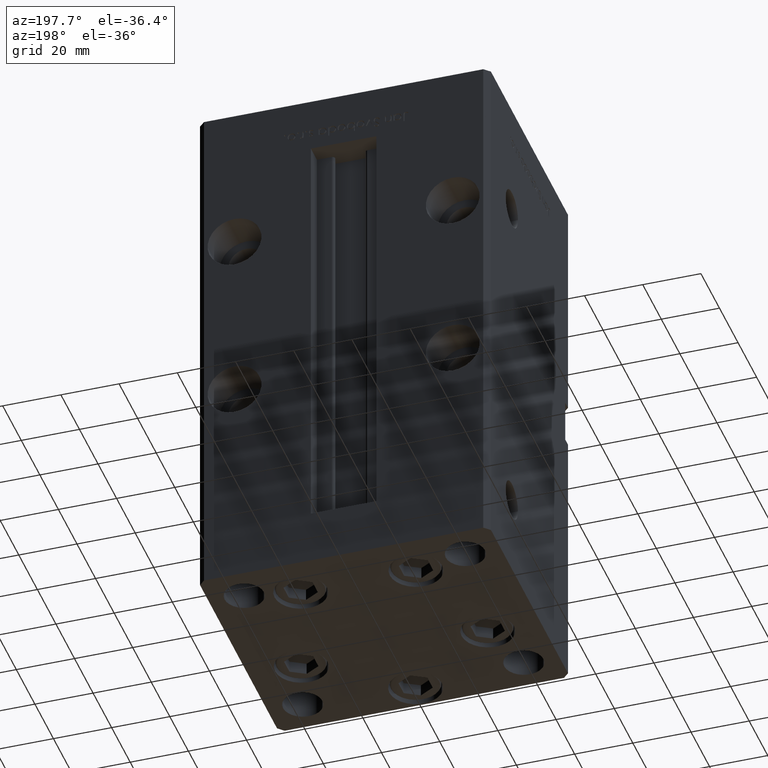
[diagram: clean part render]
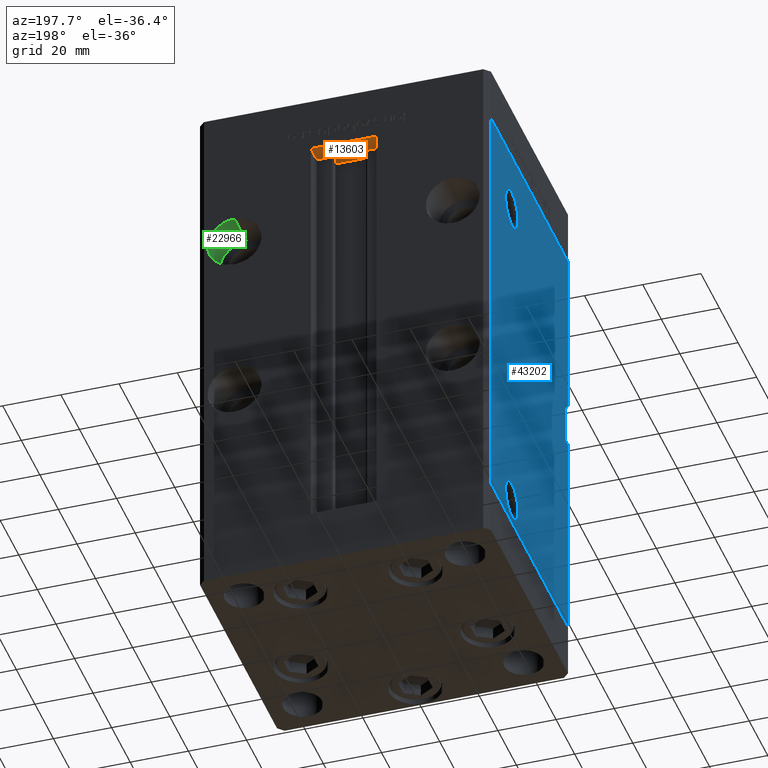
[diagram: same view with three faces highlighted in distinct colors, each labeled with its STEP entity id]
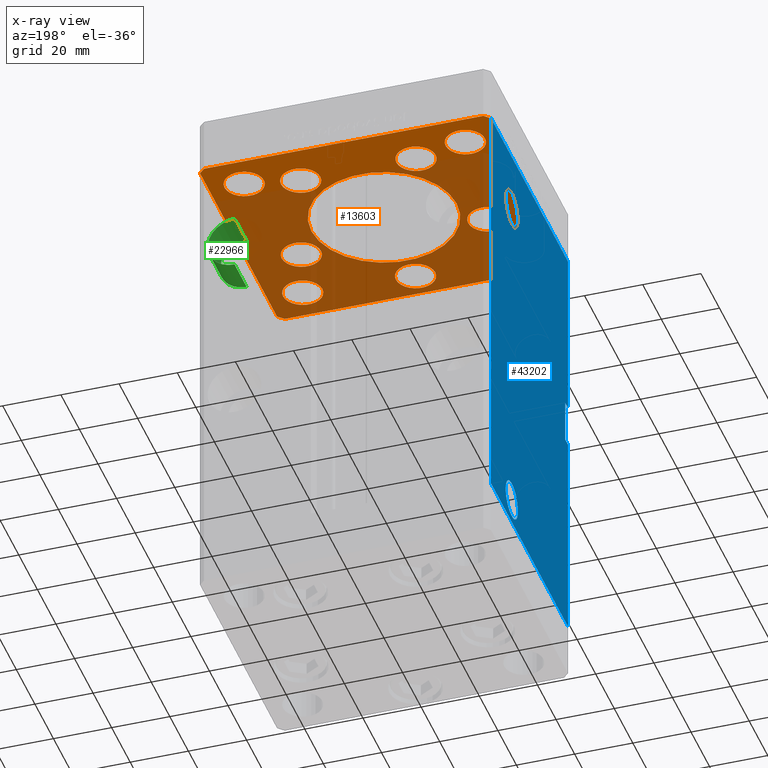
[diagram: x-ray of the same camera — body ghosted, the three highlighted faces saturated]
A machine part, auxiliary view with three faces highlighted in distinct colors.
The next image is the same camera in x-ray (body ghosted, the three faces saturated) — at least one of them is partly hidden behind the body in this view.
Their STEP definitions:

[orange] entity #13603 — the highlighted planar face has unit normal (0, 0, 1).
#55 = DIRECTION ( 'NONE',  ( 1.000000000000000000, 0.000000000000000000, 0.000000000000000000 ) ) ;
#145 = DIRECTION ( 'NONE',  ( 0.000000000000000000, 0.000000000000000000, 1.000000000000000000 ) ) ;
#252 = DIRECTION ( 'NONE',  ( 0.000000000000000000, 1.000000000000000000, 0.000000000000000000 ) ) ;
#418 = ORIENTED_EDGE ( 'NONE', *, *, #24562, .F. ) ;
#487 = ORIENTED_EDGE ( 'NONE', *, *, #46979, .T. ) ;
#545 = EDGE_CURVE ( 'NONE', #21549, #40466, #6667, .T. ) ;
#688 = VECTOR ( 'NONE', #32092, 1000.000000000000000 ) ;
#708 = DIRECTION ( 'NONE',  ( 0.000000000000000000, -0.000000000000000000, -1.000000000000000000 ) ) ;
#743 = CARTESIAN_POINT ( 'NONE',  ( -48.00000000000000711, -43.50000000000002842, -19.00000000000000000 ) ) ;
#828 = VECTOR ( 'NONE', #37924, 1000.000000000000000 ) ;
#923 = AXIS2_PLACEMENT_3D ( 'NONE', #33076, #21474, #49746 ) ;
#1153 = VERTEX_POINT ( 'NONE', #42337 ) ;
#1804 = DIRECTION ( 'NONE',  ( 1.000000000000000000, 1.156482317317871331E-15, 0.000000000000000000 ) ) ;
#1805 = ORIENTED_EDGE ( 'NONE', *, *, #36963, .F. ) ;
#2052 = DIRECTION ( 'NONE',  ( 0.000000000000000000, -0.000000000000000000, -1.000000000000000000 ) ) ;
#2056 = VERTEX_POINT ( 'NONE', #9770 ) ;
#2241 = ORIENTED_EDGE ( 'NONE', *, *, #12536, .F. ) ;
#2251 = EDGE_CURVE ( 'NONE', #40466, #2056, #15671, .T. ) ;
#2346 = CARTESIAN_POINT ( 'NONE',  ( 38.00000000000000711, -31.50000000000000711, -19.00000000000000000 ) ) ;
#2405 = AXIS2_PLACEMENT_3D ( 'NONE', #33517, #12285, #49414 ) ;
#2724 = DIRECTION ( 'NONE',  ( -0.000000000000000000, 0.000000000000000000, 1.000000000000000000 ) ) ;
#2906 = AXIS2_PLACEMENT_3D ( 'NONE', #14158, #2052, #13896 ) ;
#2921 = CARTESIAN_POINT ( 'NONE',  ( 50.00000000000000000, 41.50000000000000711, -19.00000000000000000 ) ) ;
#2995 = FACE_BOUND ( 'NONE', #42290, .T. ) ;
#3038 = CARTESIAN_POINT ( 'NONE',  ( 38.80550741379015989, -11.33333333333332860, -19.00000000000000000 ) ) ;
#3656 = DIRECTION ( 'NONE',  ( 1.000000000000000000, 0.000000000000000000, 0.000000000000000000 ) ) ;
#3662 = EDGE_CURVE ( 'NONE', #42393, #13026, #16055, .T. ) ;
#3750 = CARTESIAN_POINT ( 'NONE',  ( -38.00000000000000711, -31.50000000000000711, -19.00000000000000000 ) ) ;
#4226 = DIRECTION ( 'NONE',  ( 0.7071067811865474617, 0.7071067811865474617, 0.000000000000000000 ) ) ;
#4342 = EDGE_CURVE ( 'NONE', #30519, #51500, #33262, .T. ) ;
#4751 = DIRECTION ( 'NONE',  ( 0.000000000000000000, -0.000000000000000000, -1.000000000000000000 ) ) ;
#5532 = DIRECTION ( 'NONE',  ( 0.000000000000000000, -0.000000000000000000, -1.000000000000000000 ) ) ;
#6015 = AXIS2_PLACEMENT_3D ( 'NONE', #39590, #2724, #35554 ) ;
#6084 = EDGE_CURVE ( 'NONE', #21368, #23447, #33841, .T. ) ;
#6110 = DIRECTION ( 'NONE',  ( -0.000000000000000000, -0.000000000000000000, -1.000000000000000000 ) ) ;
#6114 = CARTESIAN_POINT ( 'NONE',  ( -31.25000000000000000, 31.50000000000000000, -19.00000000000000000 ) ) ;
#6140 = EDGE_LOOP ( 'NONE', ( #15444, #29737 ) ) ;
#6237 = CIRCLE ( 'NONE', #12289, 6.749999999999999112 ) ;
#6485 = FACE_BOUND ( 'NONE', #12703, .T. ) ;
#6667 = LINE ( 'NONE', #2921, #15241 ) ;
#6852 = EDGE_CURVE ( 'NONE', #43622, #49764, #18724, .T. ) ;
#7277 = FACE_OUTER_BOUND ( 'NONE', #26080, .T. ) ;
#7300 = DIRECTION ( 'NONE',  ( -0.000000000000000000, -0.000000000000000000, -1.000000000000000000 ) ) ;
#7324 = CARTESIAN_POINT ( 'NONE',  ( -38.00000000000000000, 31.50000000000000000, -19.00000000000000000 ) ) ;
#7328 = ORIENTED_EDGE ( 'NONE', *, *, #41647, .T. ) ;
#7512 = CARTESIAN_POINT ( 'NONE',  ( 25.00000000000000000, 0.000000000000000000, -19.00000000000000000 ) ) ;
#7591 = DIRECTION ( 'NONE',  ( 1.000000000000000000, 0.000000000000000000, 0.000000000000000000 ) ) ;
#8013 = CIRCLE ( 'NONE', #45000, 6.749999999999999112 ) ;
#8132 = CIRCLE ( 'NONE', #21000, 6.749999999999999112 ) ;
#8480 = CARTESIAN_POINT ( 'NONE',  ( -48.00000000000000000, 43.49999999999997158, -19.00000000000000000 ) ) ;
#8502 = VERTEX_POINT ( 'NONE', #6114 ) ;
#8650 = CARTESIAN_POINT ( 'NONE',  ( 0.000000000000000000, 0.000000000000000000, -19.00000000000000000 ) ) ;
#8686 = EDGE_CURVE ( 'NONE', #16312, #12153, #46302, .T. ) ;
#8777 = CIRCLE ( 'NONE', #38879, 6.749999999999999112 ) ;
#8909 = ORIENTED_EDGE ( 'NONE', *, *, #37742, .F. ) ;
#9088 = CARTESIAN_POINT ( 'NONE',  ( 31.25000000000000711, -31.50000000000000711, -19.00000000000000000 ) ) ;
#9173 = EDGE_CURVE ( 'NONE', #8502, #14466, #26535, .T. ) ;
#9663 = CIRCLE ( 'NONE', #20851, 6.749999999999999112 ) ;
#9770 = CARTESIAN_POINT ( 'NONE',  ( -48.00000000000000000, 43.49999999999997158, -19.00000000000000000 ) ) ;
#9789 = ORIENTED_EDGE ( 'NONE', *, *, #545, .F. ) ;
#10038 = ORIENTED_EDGE ( 'NONE', *, *, #3662, .F. ) ;
#10597 = ORIENTED_EDGE ( 'NONE', *, *, #49715, .T. ) ;
#10696 = CIRCLE ( 'NONE', #20156, 6.749999999999999112 ) ;
#11073 = DIRECTION ( 'NONE',  ( -1.000000000000000000, 0.000000000000000000, 0.000000000000000000 ) ) ;
#11261 = DIRECTION ( 'NONE',  ( 1.000000000000000000, 0.000000000000000000, 0.000000000000000000 ) ) ;
#11808 = VERTEX_POINT ( 'NONE', #43535 ) ;
#12153 = VERTEX_POINT ( 'NONE', #27322 ) ;
#12187 = AXIS2_PLACEMENT_3D ( 'NONE', #3750, #20159, #46786 ) ;
#12285 = DIRECTION ( 'NONE',  ( 0.000000000000000000, -0.000000000000000000, -1.000000000000000000 ) ) ;
#12289 = AXIS2_PLACEMENT_3D ( 'NONE', #16612, #4751, #21165 ) ;
#12436 = CARTESIAN_POINT ( 'NONE',  ( 44.75000000000000711, -31.50000000000000711, -19.00000000000000000 ) ) ;
#12536 = EDGE_CURVE ( 'NONE', #23479, #49799, #50033, .T. ) ;
#12539 = DIRECTION ( 'NONE',  ( -0.7071067811865536790, -0.7071067811865414665, 0.000000000000000000 ) ) ;
#12607 = CARTESIAN_POINT ( 'NONE',  ( 47.99999999999999289, 43.50000000000000000, -19.00000000000000000 ) ) ;
#12695 = CARTESIAN_POINT ( 'NONE',  ( 38.00000000000000000, 31.50000000000000000, -19.00000000000000000 ) ) ;
#12703 = EDGE_LOOP ( 'NONE', ( #52658, #41574 ) ) ;
#12952 = DIRECTION ( 'NONE',  ( 0.000000000000000000, -0.000000000000000000, -1.000000000000000000 ) ) ;
#13026 = VERTEX_POINT ( 'NONE', #15221 ) ;
#13143 = CARTESIAN_POINT ( 'NONE',  ( -50.00000000000000711, 41.49999999999999289, -19.00000000000000000 ) ) ;
#13300 = ORIENTED_EDGE ( 'NONE', *, *, #9173, .F. ) ;
#13351 = DIRECTION ( 'NONE',  ( 0.000000000000000000, -0.000000000000000000, -1.000000000000000000 ) ) ;
#13391 = VERTEX_POINT ( 'NONE', #36424 ) ;
#13603 = ADVANCED_FACE ( 'NONE', ( #44174, #35818, #23441, #6485, #31781, #43901, #47139, #35283, #7277, #51708, #2995 ), #23168, .F. ) ;
#13896 = DIRECTION ( 'NONE',  ( 1.000000000000000000, 0.000000000000000000, 0.000000000000000000 ) ) ;
#14158 = CARTESIAN_POINT ( 'NONE',  ( 0.000000000000000000, 0.000000000000000000, -19.00000000000000000 ) ) ;
#14212 = CARTESIAN_POINT ( 'NONE',  ( -48.00000000000000711, -43.50000000000002842, -19.00000000000000000 ) ) ;
#14403 = ORIENTED_EDGE ( 'NONE', *, *, #51338, .F. ) ;
#14457 = DIRECTION ( 'NONE',  ( -1.000000000000000000, 0.000000000000000000, 0.000000000000000000 ) ) ;
#14466 = VERTEX_POINT ( 'NONE', #29340 ) ;
#14631 = VECTOR ( 'NONE', #252, 1000.000000000000000 ) ;
#14682 = CARTESIAN_POINT ( 'NONE',  ( 44.75000000000000000, 31.50000000000000000, -19.00000000000000000 ) ) ;
#15221 = CARTESIAN_POINT ( 'NONE',  ( -25.00000000000000000, 3.061616997868383043E-15, -19.00000000000000000 ) ) ;
#15241 = VECTOR ( 'NONE', #47598, 999.9999999999998863 ) ;
#15444 = ORIENTED_EDGE ( 'NONE', *, *, #23277, .F. ) ;
#15671 = LINE ( 'NONE', #48240, #688 ) ;
#16055 = CIRCLE ( 'NONE', #27227, 25.00000000000000000 ) ;
#16312 = VERTEX_POINT ( 'NONE', #32086 ) ;
#16612 = CARTESIAN_POINT ( 'NONE',  ( 0.000000000000000000, -34.00000000000000000, -19.00000000000000000 ) ) ;
#16650 = EDGE_CURVE ( 'NONE', #23809, #11808, #44804, .T. ) ;
#17380 = CARTESIAN_POINT ( 'NONE',  ( 50.00000000000000000, -41.49999999999992895, -19.00000000000000000 ) ) ;
#17386 = CARTESIAN_POINT ( 'NONE',  ( 32.05550741379015989, -11.33333333333332860, -19.00000000000000000 ) ) ;
#17893 = VERTEX_POINT ( 'NONE', #37922 ) ;
#18348 = ORIENTED_EDGE ( 'NONE', *, *, #48132, .F. ) ;
#18716 = CARTESIAN_POINT ( 'NONE',  ( 31.25000000000000000, 31.50000000000000000, -19.00000000000000000 ) ) ;
#18724 = CIRCLE ( 'NONE', #2405, 6.749999999999999112 ) ;
#19155 = EDGE_LOOP ( 'NONE', ( #23675, #1805 ) ) ;
#19684 = EDGE_CURVE ( 'NONE', #49764, #43622, #22418, .T. ) ;
#19973 = CIRCLE ( 'NONE', #50053, 6.749999999999999112 ) ;
#20156 = AXIS2_PLACEMENT_3D ( 'NONE', #21122, #52909, #41054 ) ;
#20159 = DIRECTION ( 'NONE',  ( 0.000000000000000000, 0.000000000000000000, 1.000000000000000000 ) ) ;
#20851 = AXIS2_PLACEMENT_3D ( 'NONE', #50878, #43864, #26911 ) ;
#20887 = CIRCLE ( 'NONE', #40678, 6.749999999999999112 ) ;
#21000 = AXIS2_PLACEMENT_3D ( 'NONE', #39606, #7300, #11073 ) ;
#21122 = CARTESIAN_POINT ( 'NONE',  ( 19.82068048781374969, 27.62499999999998934, -19.00000000000000000 ) ) ;
#21150 = CARTESIAN_POINT ( 'NONE',  ( -38.00000000000000711, -31.50000000000000711, -19.00000000000000000 ) ) ;
#21165 = DIRECTION ( 'NONE',  ( 1.000000000000000000, 0.000000000000000000, 0.000000000000000000 ) ) ;
#21307 = VECTOR ( 'NONE', #1804, 1000.000000000000000 ) ;
#21368 = VERTEX_POINT ( 'NONE', #14212 ) ;
#21419 = DIRECTION ( 'NONE',  ( 1.000000000000000000, 0.000000000000000000, 0.000000000000000000 ) ) ;
#21474 = DIRECTION ( 'NONE',  ( 0.000000000000000000, -0.000000000000000000, -1.000000000000000000 ) ) ;
#21548 = ORIENTED_EDGE ( 'NONE', *, *, #41319, .F. ) ;
#21549 = VERTEX_POINT ( 'NONE', #32489 ) ;
#21963 = CARTESIAN_POINT ( 'NONE',  ( 0.000000000000000000, -34.00000000000000000, -19.00000000000000000 ) ) ;
#22418 = CIRCLE ( 'NONE', #48209, 6.749999999999999112 ) ;
#23069 = AXIS2_PLACEMENT_3D ( 'NONE', #21963, #708, #21419 ) ;
#23168 = PLANE ( 'NONE',  #6015 ) ;
#23277 = EDGE_CURVE ( 'NONE', #44752, #1153, #9663, .T. ) ;
#23441 = FACE_BOUND ( 'NONE', #45365, .T. ) ;
#23447 = VERTEX_POINT ( 'NONE', #33591 ) ;
#23479 = VERTEX_POINT ( 'NONE', #13143 ) ;
#23675 = ORIENTED_EDGE ( 'NONE', *, *, #4342, .F. ) ;
#23751 = LINE ( 'NONE', #32632, #28589 ) ;
#23809 = VERTEX_POINT ( 'NONE', #3038 ) ;
#24388 = CIRCLE ( 'NONE', #2906, 25.00000000000000000 ) ;
#24520 = EDGE_LOOP ( 'NONE', ( #13300, #49848 ) ) ;
#24562 = EDGE_CURVE ( 'NONE', #12153, #16312, #6237, .T. ) ;
#25437 = LINE ( 'NONE', #8480, #42453 ) ;
#26080 = EDGE_LOOP ( 'NONE', ( #18348, #2241, #14403, #26132, #9789, #8909, #48674, #33418 ) ) ;
#26132 = ORIENTED_EDGE ( 'NONE', *, *, #2251, .F. ) ;
#26535 = CIRCLE ( 'NONE', #35142, 6.749999999999999112 ) ;
#26682 = EDGE_CURVE ( 'NONE', #11808, #23809, #31215, .T. ) ;
#26753 = ORIENTED_EDGE ( 'NONE', *, *, #6852, .F. ) ;
#26911 = DIRECTION ( 'NONE',  ( 1.000000000000000000, 0.000000000000000000, 0.000000000000000000 ) ) ;
#27227 = AXIS2_PLACEMENT_3D ( 'NONE', #8650, #12952, #7591 ) ;
#27322 = CARTESIAN_POINT ( 'NONE',  ( -6.749999999999999112, -34.00000000000000000, -19.00000000000000000 ) ) ;
#27659 = EDGE_CURVE ( 'NONE', #13026, #42393, #24388, .T. ) ;
#28066 = DIRECTION ( 'NONE',  ( 0.7071067811865487940, -0.7071067811865463515, 0.000000000000000000 ) ) ;
#28512 = CIRCLE ( 'NONE', #31114, 6.749999999999999112 ) ;
#28589 = VECTOR ( 'NONE', #28066, 1000.000000000000000 ) ;
#28859 = DIRECTION ( 'NONE',  ( 0.000000000000000000, 0.000000000000000000, 1.000000000000000000 ) ) ;
#29340 = CARTESIAN_POINT ( 'NONE',  ( -44.75000000000000000, 31.50000000000000000, -19.00000000000000000 ) ) ;
#29737 = ORIENTED_EDGE ( 'NONE', *, *, #52448, .F. ) ;
#29770 = DIRECTION ( 'NONE',  ( 1.000000000000000000, 0.000000000000000000, 0.000000000000000000 ) ) ;
#30034 = CARTESIAN_POINT ( 'NONE',  ( 32.05550741379015989, -11.33333333333332860, -19.00000000000000000 ) ) ;
#30519 = VERTEX_POINT ( 'NONE', #42717 ) ;
#31040 = CARTESIAN_POINT ( 'NONE',  ( -19.82068048781374969, 27.62499999999998934, -19.00000000000000000 ) ) ;
#31114 = AXIS2_PLACEMENT_3D ( 'NONE', #2346, #6110, #14457 ) ;
#31215 = CIRCLE ( 'NONE', #41558, 6.749999999999999112 ) ;
#31537 = AXIS2_PLACEMENT_3D ( 'NONE', #31040, #40450, #51770 ) ;
#31727 = ORIENTED_EDGE ( 'NONE', *, *, #8686, .F. ) ;
#31781 = FACE_BOUND ( 'NONE', #6140, .T. ) ;
#32086 = CARTESIAN_POINT ( 'NONE',  ( 6.749999999999999112, -34.00000000000000000, -19.00000000000000000 ) ) ;
#32092 = DIRECTION ( 'NONE',  ( -1.000000000000000000, -2.891205793294678326E-16, 0.000000000000000000 ) ) ;
#32489 = CARTESIAN_POINT ( 'NONE',  ( 50.00000000000000000, 41.50000000000000711, -19.00000000000000000 ) ) ;
#32632 = CARTESIAN_POINT ( 'NONE',  ( -50.00000000000000000, -41.50000000000004263, -19.00000000000000000 ) ) ;
#33076 = CARTESIAN_POINT ( 'NONE',  ( -19.82068048781374969, 27.62499999999998934, -19.00000000000000000 ) ) ;
#33262 = CIRCLE ( 'NONE', #31537, 6.749999999999999112 ) ;
#33418 = ORIENTED_EDGE ( 'NONE', *, *, #6084, .F. ) ;
#33517 = CARTESIAN_POINT ( 'NONE',  ( -32.05550741379015989, -11.33333333333332860, -19.00000000000000000 ) ) ;
#33528 = DIRECTION ( 'NONE',  ( 0.000000000000000000, 0.000000000000000000, 1.000000000000000000 ) ) ;
#33591 = CARTESIAN_POINT ( 'NONE',  ( 48.00000000000000711, -43.49999999999992184, -19.00000000000000000 ) ) ;
#33841 = LINE ( 'NONE', #743, #21307 ) ;
#34307 = CARTESIAN_POINT ( 'NONE',  ( -26.57068048781375325, 27.62499999999998934, -19.00000000000000000 ) ) ;
#35071 = VERTEX_POINT ( 'NONE', #18716 ) ;
#35142 = AXIS2_PLACEMENT_3D ( 'NONE', #7324, #35596, #48516 ) ;
#35283 = FACE_BOUND ( 'NONE', #44573, .T. ) ;
#35554 = DIRECTION ( 'NONE',  ( 1.000000000000000000, 0.000000000000000000, 0.000000000000000000 ) ) ;
#35596 = DIRECTION ( 'NONE',  ( -0.000000000000000000, -0.000000000000000000, -1.000000000000000000 ) ) ;
#35818 = FACE_BOUND ( 'NONE', #35910, .T. ) ;
#35910 = EDGE_LOOP ( 'NONE', ( #50502, #26753 ) ) ;
#36424 = CARTESIAN_POINT ( 'NONE',  ( -44.75000000000000711, -31.50000000000000711, -19.00000000000000000 ) ) ;
#36454 = EDGE_LOOP ( 'NONE', ( #10038, #40407 ) ) ;
#36679 = ORIENTED_EDGE ( 'NONE', *, *, #51918, .F. ) ;
#36963 = EDGE_CURVE ( 'NONE', #51500, #30519, #43839, .T. ) ;
#37742 = EDGE_CURVE ( 'NONE', #46957, #21549, #52476, .T. ) ;
#37922 = CARTESIAN_POINT ( 'NONE',  ( -31.25000000000000711, -31.50000000000000711, -19.00000000000000000 ) ) ;
#37924 = DIRECTION ( 'NONE',  ( 8.360113137237620037E-17, -1.000000000000000000, 0.000000000000000000 ) ) ;
#38603 = CARTESIAN_POINT ( 'NONE',  ( -25.30550741379015989, -11.33333333333332860, -19.00000000000000000 ) ) ;
#38879 = AXIS2_PLACEMENT_3D ( 'NONE', #21150, #33528, #42140 ) ;
#39590 = CARTESIAN_POINT ( 'NONE',  ( 0.000000000000000000, 0.000000000000000000, -19.00000000000000000 ) ) ;
#39606 = CARTESIAN_POINT ( 'NONE',  ( 38.00000000000000711, -31.50000000000000711, -19.00000000000000000 ) ) ;
#40407 = ORIENTED_EDGE ( 'NONE', *, *, #27659, .F. ) ;
#40450 = DIRECTION ( 'NONE',  ( 0.000000000000000000, -0.000000000000000000, -1.000000000000000000 ) ) ;
#40466 = VERTEX_POINT ( 'NONE', #12607 ) ;
#40678 = AXIS2_PLACEMENT_3D ( 'NONE', #51902, #44093, #52962 ) ;
#41054 = DIRECTION ( 'NONE',  ( 1.000000000000000000, 0.000000000000000000, 0.000000000000000000 ) ) ;
#41103 = LINE ( 'NONE', #50239, #47526 ) ;
#41155 = CARTESIAN_POINT ( 'NONE',  ( 50.00000000000000000, -41.49999999999992895, -19.00000000000000000 ) ) ;
#41319 = EDGE_CURVE ( 'NONE', #47519, #44754, #28512, .T. ) ;
#41558 = AXIS2_PLACEMENT_3D ( 'NONE', #17386, #13351, #29770 ) ;
#41574 = ORIENTED_EDGE ( 'NONE', *, *, #26682, .F. ) ;
#41647 = EDGE_CURVE ( 'NONE', #17893, #13391, #52605, .T. ) ;
#42140 = DIRECTION ( 'NONE',  ( 1.000000000000000000, 0.000000000000000000, 0.000000000000000000 ) ) ;
#42224 = CARTESIAN_POINT ( 'NONE',  ( -50.00000000000000711, 41.49999999999999289, -19.00000000000000000 ) ) ;
#42290 = EDGE_LOOP ( 'NONE', ( #21548, #36679 ) ) ;
#42337 = CARTESIAN_POINT ( 'NONE',  ( 13.07068048781375147, 27.62499999999998934, -19.00000000000000000 ) ) ;
#42393 = VERTEX_POINT ( 'NONE', #7512 ) ;
#42436 = CARTESIAN_POINT ( 'NONE',  ( -38.80550741379015989, -11.33333333333332860, -19.00000000000000000 ) ) ;
#42453 = VECTOR ( 'NONE', #12539, 1000.000000000000000 ) ;
#42645 = CARTESIAN_POINT ( 'NONE',  ( -50.00000000000000000, -41.50000000000004263, -19.00000000000000000 ) ) ;
#42717 = CARTESIAN_POINT ( 'NONE',  ( -13.07068048781375325, 27.62499999999998934, -19.00000000000000000 ) ) ;
#43263 = EDGE_CURVE ( 'NONE', #35071, #43765, #19973, .T. ) ;
#43466 = EDGE_CURVE ( 'NONE', #23447, #46957, #41103, .T. ) ;
#43535 = CARTESIAN_POINT ( 'NONE',  ( 25.30550741379015989, -11.33333333333332860, -19.00000000000000000 ) ) ;
#43622 = VERTEX_POINT ( 'NONE', #42436 ) ;
#43765 = VERTEX_POINT ( 'NONE', #14682 ) ;
#43839 = CIRCLE ( 'NONE', #923, 6.749999999999999112 ) ;
#43864 = DIRECTION ( 'NONE',  ( 0.000000000000000000, -0.000000000000000000, -1.000000000000000000 ) ) ;
#43901 = FACE_BOUND ( 'NONE', #19155, .T. ) ;
#44093 = DIRECTION ( 'NONE',  ( -0.000000000000000000, -0.000000000000000000, -1.000000000000000000 ) ) ;
#44174 = FACE_BOUND ( 'NONE', #36454, .T. ) ;
#44573 = EDGE_LOOP ( 'NONE', ( #7328, #487 ) ) ;
#44752 = VERTEX_POINT ( 'NONE', #50540 ) ;
#44754 = VERTEX_POINT ( 'NONE', #9088 ) ;
#44804 = CIRCLE ( 'NONE', #51663, 6.749999999999999112 ) ;
#45000 = AXIS2_PLACEMENT_3D ( 'NONE', #52910, #145, #3656 ) ;
#45365 = EDGE_LOOP ( 'NONE', ( #31727, #418 ) ) ;
#45548 = EDGE_LOOP ( 'NONE', ( #10597, #50711 ) ) ;
#46302 = CIRCLE ( 'NONE', #23069, 6.749999999999999112 ) ;
#46786 = DIRECTION ( 'NONE',  ( 1.000000000000000000, 0.000000000000000000, 0.000000000000000000 ) ) ;
#46957 = VERTEX_POINT ( 'NONE', #17380 ) ;
#46979 = EDGE_CURVE ( 'NONE', #13391, #17893, #8777, .T. ) ;
#47139 = FACE_BOUND ( 'NONE', #45548, .T. ) ;
#47519 = VERTEX_POINT ( 'NONE', #12436 ) ;
#47526 = VECTOR ( 'NONE', #4226, 1000.000000000000114 ) ;
#47598 = DIRECTION ( 'NONE',  ( -0.7071067811865512365, 0.7071067811865439090, 0.000000000000000000 ) ) ;
#48132 = EDGE_CURVE ( 'NONE', #49799, #21368, #23751, .T. ) ;
#48135 = CARTESIAN_POINT ( 'NONE',  ( -32.05550741379015989, -11.33333333333332860, -19.00000000000000000 ) ) ;
#48209 = AXIS2_PLACEMENT_3D ( 'NONE', #48135, #52180, #11261 ) ;
#48240 = CARTESIAN_POINT ( 'NONE',  ( 47.99999999999999289, 43.50000000000000000, -19.00000000000000000 ) ) ;
#48516 = DIRECTION ( 'NONE',  ( -1.000000000000000000, 0.000000000000000000, 0.000000000000000000 ) ) ;
#48674 = ORIENTED_EDGE ( 'NONE', *, *, #43466, .F. ) ;
#48739 = EDGE_CURVE ( 'NONE', #14466, #8502, #20887, .T. ) ;
#49414 = DIRECTION ( 'NONE',  ( 1.000000000000000000, 0.000000000000000000, 0.000000000000000000 ) ) ;
#49715 = EDGE_CURVE ( 'NONE', #43765, #35071, #8013, .T. ) ;
#49746 = DIRECTION ( 'NONE',  ( 1.000000000000000000, 0.000000000000000000, 0.000000000000000000 ) ) ;
#49764 = VERTEX_POINT ( 'NONE', #38603 ) ;
#49799 = VERTEX_POINT ( 'NONE', #42645 ) ;
#49848 = ORIENTED_EDGE ( 'NONE', *, *, #48739, .F. ) ;
#50033 = LINE ( 'NONE', #42224, #828 ) ;
#50053 = AXIS2_PLACEMENT_3D ( 'NONE', #12695, #28859, #55 ) ;
#50239 = CARTESIAN_POINT ( 'NONE',  ( 48.00000000000000711, -43.49999999999992184, -19.00000000000000000 ) ) ;
#50502 = ORIENTED_EDGE ( 'NONE', *, *, #19684, .F. ) ;
#50540 = CARTESIAN_POINT ( 'NONE',  ( 26.57068048781374969, 27.62499999999998934, -19.00000000000000000 ) ) ;
#50711 = ORIENTED_EDGE ( 'NONE', *, *, #43263, .T. ) ;
#50749 = DIRECTION ( 'NONE',  ( 1.000000000000000000, 0.000000000000000000, 0.000000000000000000 ) ) ;
#50878 = CARTESIAN_POINT ( 'NONE',  ( 19.82068048781374969, 27.62499999999998934, -19.00000000000000000 ) ) ;
#51338 = EDGE_CURVE ( 'NONE', #2056, #23479, #25437, .T. ) ;
#51500 = VERTEX_POINT ( 'NONE', #34307 ) ;
#51663 = AXIS2_PLACEMENT_3D ( 'NONE', #30034, #5532, #50749 ) ;
#51708 = FACE_BOUND ( 'NONE', #24520, .T. ) ;
#51770 = DIRECTION ( 'NONE',  ( 1.000000000000000000, 0.000000000000000000, 0.000000000000000000 ) ) ;
#51902 = CARTESIAN_POINT ( 'NONE',  ( -38.00000000000000000, 31.50000000000000000, -19.00000000000000000 ) ) ;
#51918 = EDGE_CURVE ( 'NONE', #44754, #47519, #8132, .T. ) ;
#52180 = DIRECTION ( 'NONE',  ( 0.000000000000000000, -0.000000000000000000, -1.000000000000000000 ) ) ;
#52448 = EDGE_CURVE ( 'NONE', #1153, #44752, #10696, .T. ) ;
#52476 = LINE ( 'NONE', #41155, #14631 ) ;
#52605 = CIRCLE ( 'NONE', #12187, 6.749999999999999112 ) ;
#52658 = ORIENTED_EDGE ( 'NONE', *, *, #16650, .F. ) ;
#52909 = DIRECTION ( 'NONE',  ( 0.000000000000000000, -0.000000000000000000, -1.000000000000000000 ) ) ;
#52910 = CARTESIAN_POINT ( 'NONE',  ( 38.00000000000000000, 31.50000000000000000, -19.00000000000000000 ) ) ;
#52962 = DIRECTION ( 'NONE',  ( -1.000000000000000000, 0.000000000000000000, 0.000000000000000000 ) ) ;

[blue] entity #43202 — the highlighted planar face has unit normal (1, 0, 0).
#115 = LINE ( 'NONE', #13010, #7638 ) ;
#285 = DIRECTION ( 'NONE',  ( -0.000000000000000000, -1.000000000000000000, -0.000000000000000000 ) ) ;
#1165 = VERTEX_POINT ( 'NONE', #36386 ) ;
#1618 = DIRECTION ( 'NONE',  ( 0.000000000000000000, -1.000000000000000000, 0.000000000000000000 ) ) ;
#1870 = VECTOR ( 'NONE', #37722, 1000.000000000000000 ) ;
#3765 = DIRECTION ( 'NONE',  ( 3.344045254895050973E-16, -1.000000000000000000, 0.000000000000000000 ) ) ;
#4216 = CARTESIAN_POINT ( 'NONE',  ( -50.00000000000001421, 41.49999999999999289, 0.000000000000000000 ) ) ;
#4354 = FACE_BOUND ( 'NONE', #11310, .T. ) ;
#4524 = CARTESIAN_POINT ( 'NONE',  ( -50.00000000000000711, 19.00000000000000000, 127.5000000000000000 ) ) ;
#4665 = LINE ( 'NONE', #26178, #7037 ) ;
#6006 = EDGE_LOOP ( 'NONE', ( #51564, #36506 ) ) ;
#6216 = AXIS2_PLACEMENT_3D ( 'NONE', #40969, #8381, #12443 ) ;
#6551 = EDGE_CURVE ( 'NONE', #24413, #27914, #41943, .T. ) ;
#7037 = VECTOR ( 'NONE', #21077, 1000.000000000000000 ) ;
#7369 = CARTESIAN_POINT ( 'NONE',  ( -49.99999999999998579, -38.50000000000000000, 89.00000000000000000 ) ) ;
#7638 = VECTOR ( 'NONE', #41023, 1000.000000000000000 ) ;
#8381 = DIRECTION ( 'NONE',  ( 1.000000000000000000, 3.344045254895050480E-16, -0.000000000000000000 ) ) ;
#10109 = CARTESIAN_POINT ( 'NONE',  ( -49.99999999999998579, -38.50000000000000000, 89.00000000000000000 ) ) ;
#10372 = LINE ( 'NONE', #10109, #42449 ) ;
#10521 = DIRECTION ( 'NONE',  ( 0.000000000000000000, -1.000000000000000000, 0.000000000000000000 ) ) ;
#11146 = ORIENTED_EDGE ( 'NONE', *, *, #27655, .F. ) ;
#11310 = EDGE_LOOP ( 'NONE', ( #43282, #32800 ) ) ;
#11749 = CARTESIAN_POINT ( 'NONE',  ( -49.99999999999998579, -41.49999999999999289, 0.000000000000000000 ) ) ;
#11998 = VERTEX_POINT ( 'NONE', #4216 ) ;
#12104 = CARTESIAN_POINT ( 'NONE',  ( -50.00000000000001421, 41.49999999999999289, 148.5000000000000000 ) ) ;
#12443 = DIRECTION ( 'NONE',  ( -3.344045254895050480E-16, 1.000000000000000000, 0.000000000000000000 ) ) ;
#12713 = AXIS2_PLACEMENT_3D ( 'NONE', #4524, #29281, #21199 ) ;
#13010 = CARTESIAN_POINT ( 'NONE',  ( -49.99999999999998579, -38.50000000000000000, 74.00000000000000000 ) ) ;
#13076 = VECTOR ( 'NONE', #3765, 1000.000000000000000 ) ;
#13867 = CIRCLE ( 'NONE', #43961, 6.580000000000002736 ) ;
#14124 = VECTOR ( 'NONE', #285, 1000.000000000000000 ) ;
#14183 = VERTEX_POINT ( 'NONE', #25617 ) ;
#15047 = VERTEX_POINT ( 'NONE', #11749 ) ;
#16782 = CARTESIAN_POINT ( 'NONE',  ( -50.00000000000001421, 41.49999999999999289, 148.5000000000000000 ) ) ;
#17521 = EDGE_LOOP ( 'NONE', ( #39668, #43318, #11146, #26622, #25292, #18284, #46272, #48503 ) ) ;
#17605 = LINE ( 'NONE', #25411, #30266 ) ;
#18284 = ORIENTED_EDGE ( 'NONE', *, *, #24116, .F. ) ;
#18406 = CARTESIAN_POINT ( 'NONE',  ( -49.99999999999998579, -38.50000000000000000, 74.00000000000000000 ) ) ;
#21077 = DIRECTION ( 'NONE',  ( -0.000000000000000000, -0.000000000000000000, -1.000000000000000000 ) ) ;
#21199 = DIRECTION ( 'NONE',  ( 0.000000000000000000, -1.000000000000000000, 0.000000000000000000 ) ) ;
#21372 = DIRECTION ( 'NONE',  ( 3.344045254895050973E-16, -1.000000000000000000, 0.000000000000000000 ) ) ;
#21975 = DIRECTION ( 'NONE',  ( 0.000000000000000000, 0.000000000000000000, -1.000000000000000000 ) ) ;
#22011 = EDGE_CURVE ( 'NONE', #14183, #15047, #17605, .T. ) ;
#22289 = EDGE_CURVE ( 'NONE', #48860, #1165, #38986, .T. ) ;
#22799 = EDGE_CURVE ( 'NONE', #44530, #11998, #4665, .T. ) ;
#23102 = DIRECTION ( 'NONE',  ( -1.000000000000000000, -2.275047181608927644E-16, 0.000000000000000000 ) ) ;
#24020 = FACE_OUTER_BOUND ( 'NONE', #17521, .T. ) ;
#24116 = EDGE_CURVE ( 'NONE', #44530, #48860, #32298, .T. ) ;
#24356 = AXIS2_PLACEMENT_3D ( 'NONE', #32254, #23102, #39527 ) ;
#24413 = VERTEX_POINT ( 'NONE', #29249 ) ;
#25292 = ORIENTED_EDGE ( 'NONE', *, *, #22289, .F. ) ;
#25411 = CARTESIAN_POINT ( 'NONE',  ( -49.99999999999998579, -41.49999999999999289, 148.5000000000000000 ) ) ;
#25617 = CARTESIAN_POINT ( 'NONE',  ( -49.99999999999998579, -41.49999999999999289, 74.00000000000000000 ) ) ;
#26178 = CARTESIAN_POINT ( 'NONE',  ( -50.00000000000001421, 41.49999999999999289, 148.5000000000000000 ) ) ;
#26363 = CARTESIAN_POINT ( 'NONE',  ( -50.00000000000000711, 19.00000000000000000, 9.000000000000007105 ) ) ;
#26622 = ORIENTED_EDGE ( 'NONE', *, *, #29161, .T. ) ;
#26669 = CARTESIAN_POINT ( 'NONE',  ( -50.00000000000000711, 19.00000000000000000, 127.5000000000000000 ) ) ;
#26758 = CARTESIAN_POINT ( 'NONE',  ( -50.00000000000000711, 25.58000000000000185, 9.000000000000007105 ) ) ;
#27655 = EDGE_CURVE ( 'NONE', #36198, #30886, #10372, .T. ) ;
#27747 = CARTESIAN_POINT ( 'NONE',  ( -49.99999999999998579, -38.50000000000000000, 89.00000000000000000 ) ) ;
#27914 = VERTEX_POINT ( 'NONE', #28037 ) ;
#28037 = CARTESIAN_POINT ( 'NONE',  ( -50.00000000000000711, 12.41999999999998394, 127.5000000000000000 ) ) ;
#28340 = EDGE_CURVE ( 'NONE', #27914, #24413, #40718, .T. ) ;
#29161 = EDGE_CURVE ( 'NONE', #36198, #1165, #41184, .T. ) ;
#29249 = CARTESIAN_POINT ( 'NONE',  ( -50.00000000000000711, 25.58000000000001606, 127.5000000000000000 ) ) ;
#29281 = DIRECTION ( 'NONE',  ( -1.000000000000000000, -2.275047181608927644E-16, 0.000000000000000000 ) ) ;
#30266 = VECTOR ( 'NONE', #41831, 1000.000000000000000 ) ;
#30459 = DIRECTION ( 'NONE',  ( -1.000000000000000000, -2.275047181608927644E-16, 0.000000000000000000 ) ) ;
#30776 = CARTESIAN_POINT ( 'NONE',  ( -50.00000000000001421, 41.49999999999999289, 0.000000000000000000 ) ) ;
#30886 = VERTEX_POINT ( 'NONE', #18406 ) ;
#32254 = CARTESIAN_POINT ( 'NONE',  ( -50.00000000000000711, 19.00000000000000000, 9.000000000000007105 ) ) ;
#32298 = LINE ( 'NONE', #12104, #13076 ) ;
#32800 = ORIENTED_EDGE ( 'NONE', *, *, #40236, .F. ) ;
#32823 = CARTESIAN_POINT ( 'NONE',  ( -50.00000000000000711, 12.41999999999999638, 9.000000000000007105 ) ) ;
#33251 = EDGE_CURVE ( 'NONE', #30886, #14183, #115, .T. ) ;
#33872 = VERTEX_POINT ( 'NONE', #32823 ) ;
#36198 = VERTEX_POINT ( 'NONE', #7369 ) ;
#36386 = CARTESIAN_POINT ( 'NONE',  ( -49.99999999999998579, -41.49999999999999289, 89.00000000000000000 ) ) ;
#36408 = FACE_BOUND ( 'NONE', #6006, .T. ) ;
#36506 = ORIENTED_EDGE ( 'NONE', *, *, #6551, .F. ) ;
#37722 = DIRECTION ( 'NONE',  ( -0.000000000000000000, -0.000000000000000000, -1.000000000000000000 ) ) ;
#38986 = LINE ( 'NONE', #41237, #1870 ) ;
#39527 = DIRECTION ( 'NONE',  ( 0.000000000000000000, -1.000000000000000000, 0.000000000000000000 ) ) ;
#39668 = ORIENTED_EDGE ( 'NONE', *, *, #22011, .F. ) ;
#40236 = EDGE_CURVE ( 'NONE', #51506, #33872, #13867, .T. ) ;
#40718 = CIRCLE ( 'NONE', #45038, 6.580000000000016058 ) ;
#40969 = CARTESIAN_POINT ( 'NONE',  ( -50.00000000000001421, 41.49999999999999289, 148.5000000000000000 ) ) ;
#41023 = DIRECTION ( 'NONE',  ( -0.000000000000000000, -1.000000000000000000, -0.000000000000000000 ) ) ;
#41184 = LINE ( 'NONE', #27747, #14124 ) ;
#41237 = CARTESIAN_POINT ( 'NONE',  ( -49.99999999999998579, -41.49999999999999289, 148.5000000000000000 ) ) ;
#41497 = PLANE ( 'NONE',  #6216 ) ;
#41568 = CIRCLE ( 'NONE', #24356, 6.580000000000002736 ) ;
#41831 = DIRECTION ( 'NONE',  ( -0.000000000000000000, -0.000000000000000000, -1.000000000000000000 ) ) ;
#41943 = CIRCLE ( 'NONE', #12713, 6.580000000000016058 ) ;
#42098 = LINE ( 'NONE', #30776, #50094 ) ;
#42449 = VECTOR ( 'NONE', #21975, 1000.000000000000000 ) ;
#42791 = DIRECTION ( 'NONE',  ( -1.000000000000000000, -2.275047181608927644E-16, 0.000000000000000000 ) ) ;
#43202 = ADVANCED_FACE ( 'NONE', ( #24020, #4354, #36408 ), #41497, .F. ) ;
#43282 = ORIENTED_EDGE ( 'NONE', *, *, #50200, .F. ) ;
#43318 = ORIENTED_EDGE ( 'NONE', *, *, #33251, .F. ) ;
#43892 = EDGE_CURVE ( 'NONE', #11998, #15047, #42098, .T. ) ;
#43961 = AXIS2_PLACEMENT_3D ( 'NONE', #26363, #42791, #1618 ) ;
#44530 = VERTEX_POINT ( 'NONE', #16782 ) ;
#45038 = AXIS2_PLACEMENT_3D ( 'NONE', #26669, #30459, #10521 ) ;
#46272 = ORIENTED_EDGE ( 'NONE', *, *, #22799, .T. ) ;
#48503 = ORIENTED_EDGE ( 'NONE', *, *, #43892, .T. ) ;
#48860 = VERTEX_POINT ( 'NONE', #48923 ) ;
#48923 = CARTESIAN_POINT ( 'NONE',  ( -49.99999999999998579, -41.49999999999999289, 148.5000000000000000 ) ) ;
#50094 = VECTOR ( 'NONE', #21372, 1000.000000000000000 ) ;
#50200 = EDGE_CURVE ( 'NONE', #33872, #51506, #41568, .T. ) ;
#51506 = VERTEX_POINT ( 'NONE', #26758 ) ;
#51564 = ORIENTED_EDGE ( 'NONE', *, *, #28340, .F. ) ;

[green] entity #22966 — the highlighted cylindrical surface (edge-blend (fillet) strip) has radius 9.25 mm, axis along (0, 1, 0).
#1345 = EDGE_CURVE ( 'NONE', #6504, #47343, #14861, .T. ) ;
#2493 = CARTESIAN_POINT ( 'NONE',  ( 37.50000000000000000, 43.50000000000000000, 107.2499999999999858 ) ) ;
#4472 = AXIS2_PLACEMENT_3D ( 'NONE', #28579, #28306, #32607 ) ;
#6504 = VERTEX_POINT ( 'NONE', #49478 ) ;
#9474 = EDGE_CURVE ( 'NONE', #35057, #50793, #18840, .T. ) ;
#10249 = CIRCLE ( 'NONE', #47182, 9.250000000000008882 ) ;
#10534 = DIRECTION ( 'NONE',  ( 0.000000000000000000, 0.000000000000000000, 1.000000000000000000 ) ) ;
#10752 = DIRECTION ( 'NONE',  ( 0.000000000000000000, 1.000000000000000000, 0.000000000000000000 ) ) ;
#11240 = AXIS2_PLACEMENT_3D ( 'NONE', #19669, #27481, #10534 ) ;
#11356 = CYLINDRICAL_SURFACE ( 'NONE', #4472, 9.250000000000008882 ) ;
#14325 = EDGE_CURVE ( 'NONE', #35057, #6504, #17225, .T. ) ;
#14789 = CARTESIAN_POINT ( 'NONE',  ( 37.50000000000000000, 43.50000000000000000, 116.4999999999999858 ) ) ;
#14861 = LINE ( 'NONE', #31277, #45377 ) ;
#14980 = ORIENTED_EDGE ( 'NONE', *, *, #14325, .F. ) ;
#17225 = CIRCLE ( 'NONE', #11240, 9.250000000000008882 ) ;
#18840 = LINE ( 'NONE', #31761, #31725 ) ;
#19669 = CARTESIAN_POINT ( 'NONE',  ( 37.50000000000000000, 30.50000000000000000, 116.4999999999999858 ) ) ;
#22966 = ADVANCED_FACE ( 'NONE', ( #41210 ), #11356, .F. ) ;
#23398 = DIRECTION ( 'NONE',  ( 0.000000000000000000, 0.000000000000000000, 1.000000000000000000 ) ) ;
#24314 = CARTESIAN_POINT ( 'NONE',  ( 37.50000000000000000, 43.50000000000000000, 125.7500000000000000 ) ) ;
#27233 = DIRECTION ( 'NONE',  ( -0.000000000000000000, 1.000000000000000000, -0.000000000000000000 ) ) ;
#27481 = DIRECTION ( 'NONE',  ( 0.000000000000000000, 1.000000000000000000, 0.000000000000000000 ) ) ;
#28306 = DIRECTION ( 'NONE',  ( -0.000000000000000000, 1.000000000000000000, -0.000000000000000000 ) ) ;
#28579 = CARTESIAN_POINT ( 'NONE',  ( 37.50000000000000000, 30.50000000000000000, 116.4999999999999858 ) ) ;
#31277 = CARTESIAN_POINT ( 'NONE',  ( 37.50000000000000000, 30.50000000000000000, 107.2499999999999858 ) ) ;
#31577 = ORIENTED_EDGE ( 'NONE', *, *, #9474, .T. ) ;
#31725 = VECTOR ( 'NONE', #35537, 1000.000000000000000 ) ;
#31761 = CARTESIAN_POINT ( 'NONE',  ( 37.50000000000000000, 30.50000000000000000, 125.7500000000000000 ) ) ;
#32607 = DIRECTION ( 'NONE',  ( 0.000000000000000000, 0.000000000000000000, 1.000000000000000000 ) ) ;
#33073 = EDGE_CURVE ( 'NONE', #50793, #47343, #10249, .T. ) ;
#35057 = VERTEX_POINT ( 'NONE', #39717 ) ;
#35537 = DIRECTION ( 'NONE',  ( -0.000000000000000000, 1.000000000000000000, -0.000000000000000000 ) ) ;
#39717 = CARTESIAN_POINT ( 'NONE',  ( 37.50000000000000000, 30.50000000000000000, 125.7500000000000000 ) ) ;
#41210 = FACE_OUTER_BOUND ( 'NONE', #51653, .T. ) ;
#42051 = ORIENTED_EDGE ( 'NONE', *, *, #1345, .F. ) ;
#44126 = ORIENTED_EDGE ( 'NONE', *, *, #33073, .T. ) ;
#45377 = VECTOR ( 'NONE', #27233, 1000.000000000000000 ) ;
#47182 = AXIS2_PLACEMENT_3D ( 'NONE', #14789, #10752, #23398 ) ;
#47343 = VERTEX_POINT ( 'NONE', #2493 ) ;
#49478 = CARTESIAN_POINT ( 'NONE',  ( 37.50000000000000000, 30.50000000000000000, 107.2499999999999858 ) ) ;
#50793 = VERTEX_POINT ( 'NONE', #24314 ) ;
#51653 = EDGE_LOOP ( 'NONE', ( #42051, #14980, #31577, #44126 ) ) ;